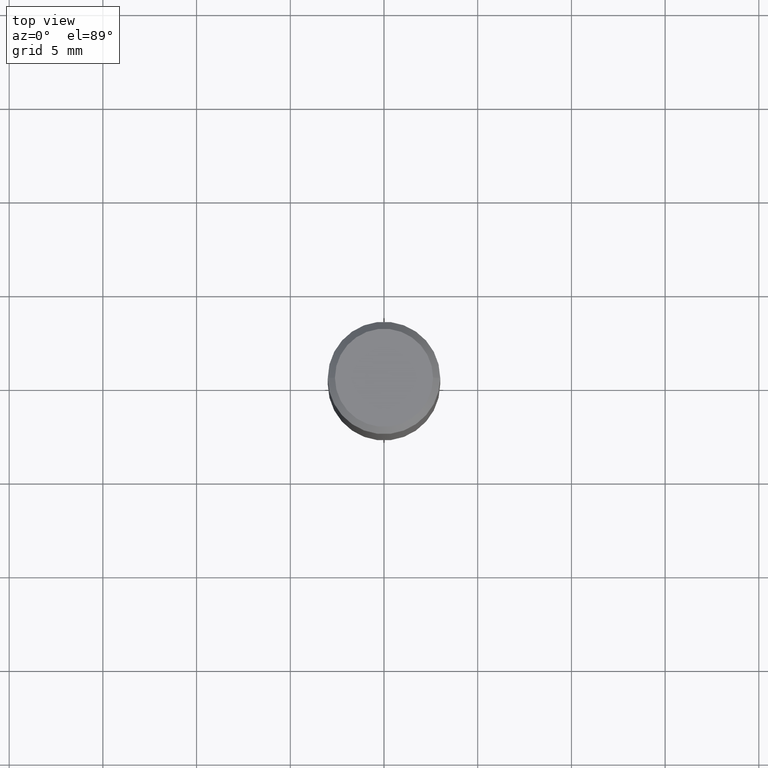
[diagram: clean part render]
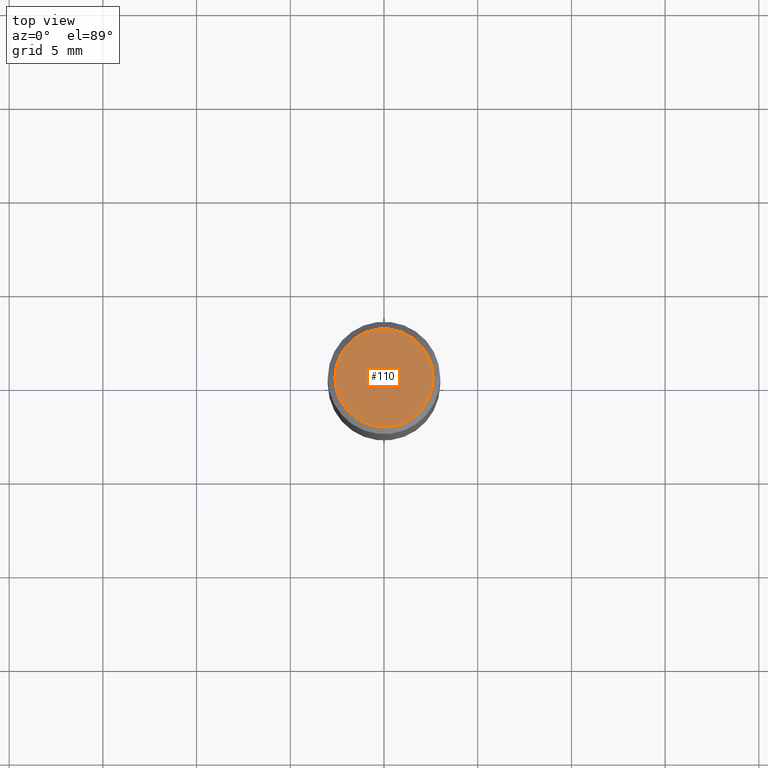
[diagram: same view with one face highlighted and labeled with its STEP entity id]
A machine part, top view. The second image highlights one B-rep face of the part: STEP entity #110.
In plain terms, the highlighted planar face has unit normal (0, -0, -1).
Its self-contained STEP definition (entity closure, byte-faithful):
#14 = AXIS2_PLACEMENT_3D ( 'NONE', #18, #303, #174 ) ;
#18 = CARTESIAN_POINT ( 'NONE',  ( 4.647400995173613138E-45, -6.635256932220833331E-31, -1.900413116462290932E-16 ) ) ;
#57 = FACE_OUTER_BOUND ( 'NONE', #347, .T. ) ;
#63 = ORIENTED_EDGE ( 'NONE', *, *, #444, .T. ) ;
#81 = DIRECTION ( 'NONE',  ( -2.445468806185136597E-29, 3.491481338843145583E-15, 1.000000000000000000 ) ) ;
#93 = EDGE_CURVE ( 'NONE', #429, #438, #267, .T. ) ;
#110 = ADVANCED_FACE ( 'NONE', ( #57 ), #194, .F. ) ;
#128 = CARTESIAN_POINT ( 'NONE',  ( 0.1031000000000000111, -7.849571885948552706E-16, -1.900413116462238423E-16 ) ) ;
#136 = ORIENTED_EDGE ( 'NONE', *, *, #93, .T. ) ;
#174 = DIRECTION ( 'NONE',  ( 1.000000000000000000, -6.982962677686265922E-15, 4.883331232093008327E-29 ) ) ;
#193 = CARTESIAN_POINT ( 'NONE',  ( -0.1031000000000000111, 7.461295621107772493E-16, -1.900413116462341961E-16 ) ) ;
#194 = PLANE ( 'NONE',  #368 ) ;
#233 = DIRECTION ( 'NONE',  ( 1.000000000000000000, -6.982962677686265922E-15, 4.883331232093008327E-29 ) ) ;
#239 = AXIS2_PLACEMENT_3D ( 'NONE', #408, #81, #233 ) ;
#267 = CIRCLE ( 'NONE', #239, 0.1031000000000000111 ) ;
#289 = CIRCLE ( 'NONE', #14, 0.1031000000000000111 ) ;
#303 = DIRECTION ( 'NONE',  ( -2.445468806185136597E-29, 3.491481338843145583E-15, 1.000000000000000000 ) ) ;
#347 = EDGE_LOOP ( 'NONE', ( #63, #136 ) ) ;
#368 = AXIS2_PLACEMENT_3D ( 'NONE', #381, #464, #448 ) ;
#381 = CARTESIAN_POINT ( 'NONE',  ( 7.199434520694541042E-16, 0.1031000000000000111, -4.549923818578428559E-16 ) ) ;
#408 = CARTESIAN_POINT ( 'NONE',  ( 4.647400995173613138E-45, -6.635256932220833331E-31, -1.900413116462290932E-16 ) ) ;
#429 = VERTEX_POINT ( 'NONE', #128 ) ;
#438 = VERTEX_POINT ( 'NONE', #193 ) ;
#444 = EDGE_CURVE ( 'NONE', #438, #429, #289, .T. ) ;
#448 = DIRECTION ( 'NONE',  ( -1.000000000000000000, 6.982962677686265922E-15, -4.876176775795935793E-29 ) ) ;
#464 = DIRECTION ( 'NONE',  ( 2.438088387897960049E-29, -3.491481338843145188E-15, -1.000000000000000000 ) ) ;